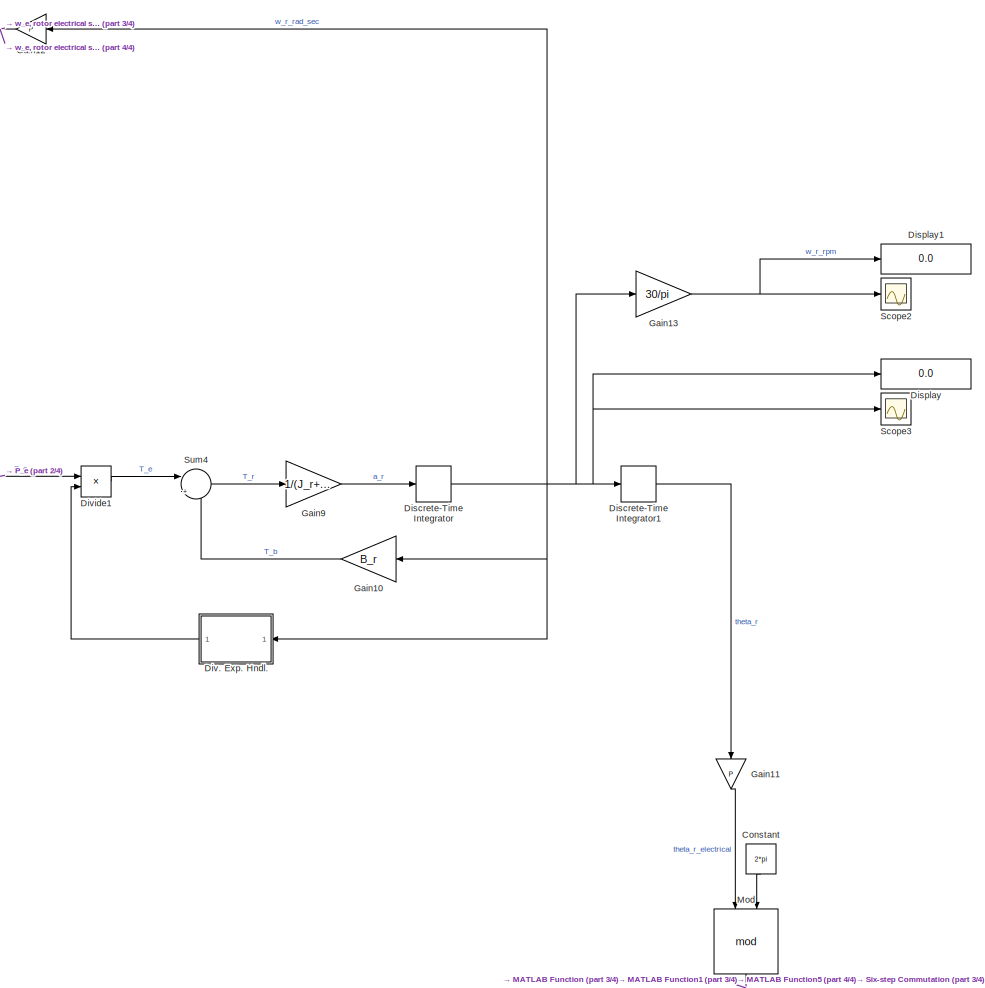
[diagram: root canvas - part 1/4, right side, full height]
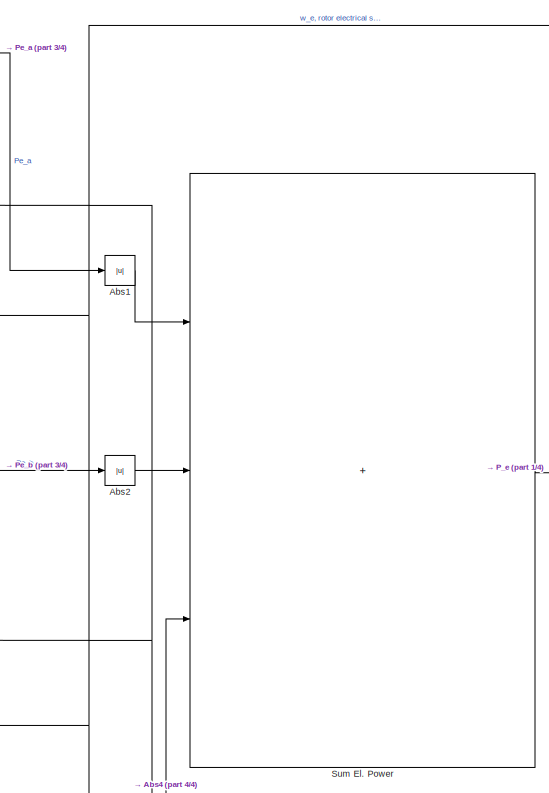
[diagram: root canvas - part 2/4, top center region]
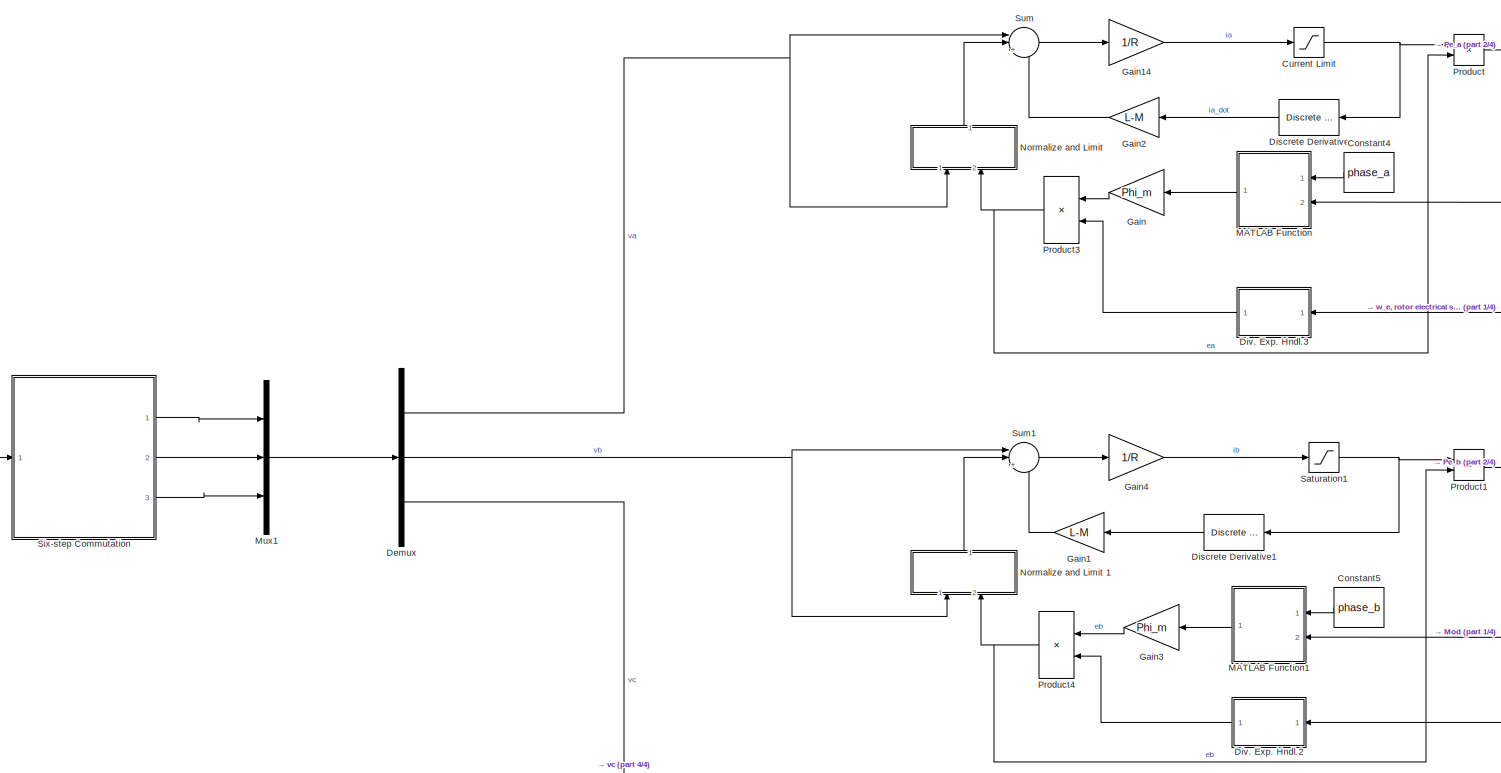
[diagram: root canvas - part 3/4, top left region]
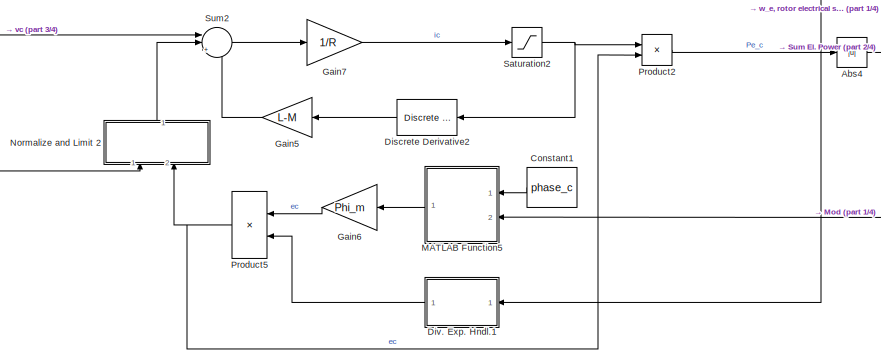
[diagram: root canvas - part 4/4, bottom center region]
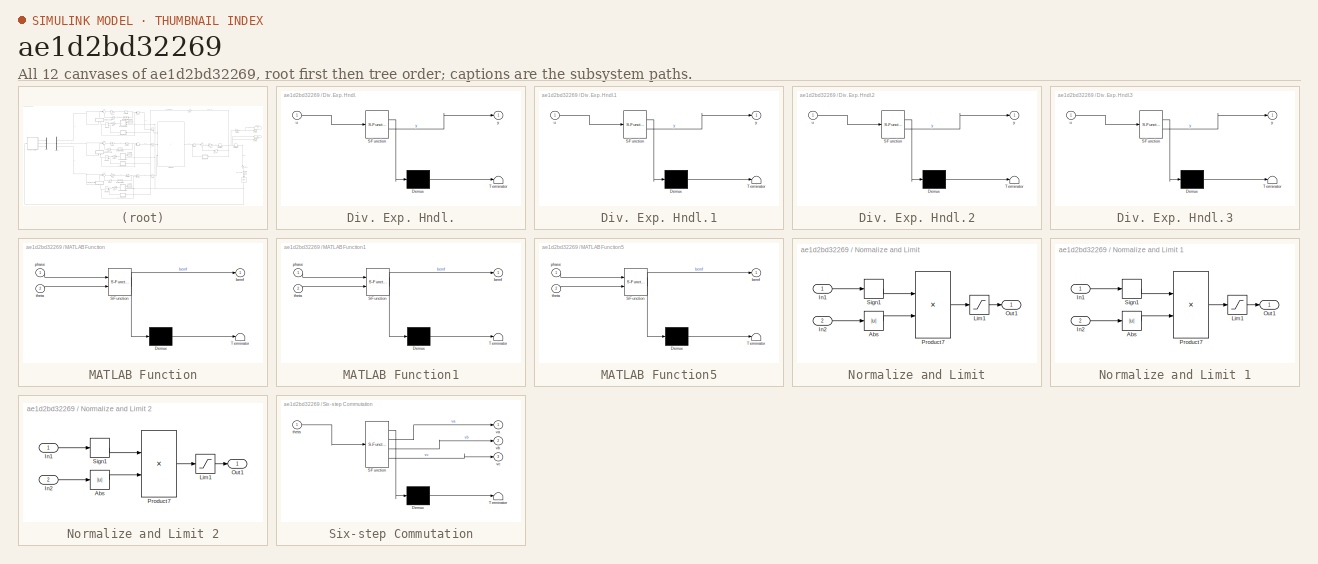
[diagram: thumbnail index - all 12 canvases of the model, root first then tree order]
MODEL slx_ae1d2bd32269
KIND model
CONFIG AbsTol = auto
CONFIG EnableMultiTasking = off
CONFIG FixedStep = 1e-05
CONFIG MaxStep = auto
CONFIG MinStep = auto
CONFIG RelTol = 1e-3
CONFIG SampleTimeConstraint = Unconstrained
CONFIG SolverName = FixedStepDiscrete
CONFIG StartTime = 0.0
CONFIG StopTime = 10
BLOCK [Abs] Abs1
  SaturateOnIntegerOverflow = off
BLOCK [Abs] Abs2
  SaturateOnIntegerOverflow = off
BLOCK [Abs] Abs4
  NameLocation = top
  SaturateOnIntegerOverflow = off
BLOCK [Constant] Constant
  NameLocation = left
  Value = 2*pi
BLOCK [Constant] Constant1
  NameLocation = top
  Value = phase_c
BLOCK [Constant] Constant4
  NameLocation = top
  Value = phase_a
BLOCK [Constant] Constant5
  NameLocation = top
  Value = phase_b
BLOCK [Saturate] Current Limit
  LowerLimit = -current_lim
  UpperLimit = current_lim
BLOCK [Demux] Demux
  Outputs = 3
  Ports = [1, 3]
BLOCK [Reference] Discrete Derivative  REF=simulink/Discrete/Discrete Derivative
  NameLocation = top
  Ports = [1, 1]
  SourceBlock = simulink/Discrete/Discrete Derivative
  SourceProductBaseCode = SL
  SourceType = Discrete Derivative
BLOCK [Reference] Discrete Derivative1  REF=simulink/Discrete/Discrete Derivative
  NameLocation = top
  Ports = [1, 1]
  SourceBlock = simulink/Discrete/Discrete Derivative
  SourceProductBaseCode = SL
  SourceType = Discrete Derivative
BLOCK [Reference] Discrete Derivative2  REF=simulink/Discrete/Discrete Derivative
  NameLocation = top
  Ports = [1, 1]
  SourceBlock = simulink/Discrete/Discrete Derivative
  SourceProductBaseCode = SL
  SourceType = Discrete Derivative
BLOCK [DiscreteIntegrator] Discrete-Time Integrator
  ICPrevOutput = DiscIntNeverNeededParam
  ICPrevScaledInput = DiscIntNeverNeededParam
  InitialConditionSetting = Auto
  Ports = [1, 1]
  SampleTime = -1
BLOCK [DiscreteIntegrator] Discrete-Time Integrator1
  ICPrevOutput = DiscIntNeverNeededParam
  ICPrevScaledInput = DiscIntNeverNeededParam
  InitialConditionSetting = Auto
  Ports = [1, 1]
  SampleTime = -1
BLOCK [Display] Display
  Decimation = 1
  Ports = [1]
BLOCK [Display] Display1
  Decimation = 1
  Ports = [1]
BLOCK [SubSystem] Div. Exp. Hndl.
  ErrorFcn = Stateflow.Translate.translate
  PermitHierarchicalResolution = ExplicitOnly
  Ports = [1, 1]
  RequestExecContextInheritance = off
  SFBlockType = MATLAB Function
  TreatAsAtomicUnit = on
BLOCK [Demux] Div. Exp. Hndl./ Demux 
  Outputs = 1
  Ports = [1, 1]
BLOCK [S-Function] Div. Exp. Hndl./ SFunction 
  EnableBusSupport = on
  FunctionName = sf_sfun
  PortCounts = [1 2]
  Ports = [1, 2]
  SFcnIsStateOwnerBlock = off
  SFunctionDeploymentMode = off
  Tag = Stateflow S-Function 4
BLOCK [Terminator] Div. Exp. Hndl./ Terminator 
BLOCK [Inport] Div. Exp. Hndl./u
BLOCK [Outport] Div. Exp. Hndl./y
BLOCK [SubSystem] Div. Exp. Hndl.1
  ErrorFcn = Stateflow.Translate.translate
  PermitHierarchicalResolution = ExplicitOnly
  Ports = [1, 1]
  RequestExecContextInheritance = off
  SFBlockType = MATLAB Function
  TreatAsAtomicUnit = on
BLOCK [Demux] Div. Exp. Hndl.1/ Demux 
  Outputs = 1
  Ports = [1, 1]
BLOCK [S-Function] Div. Exp. Hndl.1/ SFunction 
  EnableBusSupport = on
  FunctionName = sf_sfun
  PortCounts = [1 2]
  Ports = [1, 2]
  SFcnIsStateOwnerBlock = off
  SFunctionDeploymentMode = off
  Tag = Stateflow S-Function 8
BLOCK [Terminator] Div. Exp. Hndl.1/ Terminator 
BLOCK [Inport] Div. Exp. Hndl.1/u
BLOCK [Outport] Div. Exp. Hndl.1/y
BLOCK [SubSystem] Div. Exp. Hndl.2
  ErrorFcn = Stateflow.Translate.translate
  PermitHierarchicalResolution = ExplicitOnly
  Ports = [1, 1]
  RequestExecContextInheritance = off
  SFBlockType = MATLAB Function
  TreatAsAtomicUnit = on
BLOCK [Demux] Div. Exp. Hndl.2/ Demux 
  Outputs = 1
  Ports = [1, 1]
BLOCK [S-Function] Div. Exp. Hndl.2/ SFunction 
  EnableBusSupport = on
  FunctionName = sf_sfun
  PortCounts = [1 2]
  Ports = [1, 2]
  SFcnIsStateOwnerBlock = off
  SFunctionDeploymentMode = off
  Tag = Stateflow S-Function 7
BLOCK [Terminator] Div. Exp. Hndl.2/ Terminator 
BLOCK [Inport] Div. Exp. Hndl.2/u
BLOCK [Outport] Div. Exp. Hndl.2/y
BLOCK [SubSystem] Div. Exp. Hndl.3
  ErrorFcn = Stateflow.Translate.translate
  PermitHierarchicalResolution = ExplicitOnly
  Ports = [1, 1]
  RequestExecContextInheritance = off
  SFBlockType = MATLAB Function
  TreatAsAtomicUnit = on
BLOCK [Demux] Div. Exp. Hndl.3/ Demux 
  Outputs = 1
  Ports = [1, 1]
BLOCK [S-Function] Div. Exp. Hndl.3/ SFunction 
  EnableBusSupport = on
  FunctionName = sf_sfun
  PortCounts = [1 2]
  Ports = [1, 2]
  SFcnIsStateOwnerBlock = off
  SFunctionDeploymentMode = off
  Tag = Stateflow S-Function 6
BLOCK [Terminator] Div. Exp. Hndl.3/ Terminator 
BLOCK [Inport] Div. Exp. Hndl.3/u
BLOCK [Outport] Div. Exp. Hndl.3/y
BLOCK [Product] Divide1
  Inputs = */
  Ports = [2, 1]
BLOCK [Gain] Gain
  Gain = Phi_m
  NameLocation = top
BLOCK [Gain] Gain1
  Gain = L-M
  NameLocation = top
BLOCK [Gain] Gain10
  Gain = B_r
  NameLocation = top
BLOCK [Gain] Gain11
  Gain = P
  NameLocation = left
BLOCK [Gain] Gain12
  Gain = P
  NameLocation = top
BLOCK [Gain] Gain13
  Gain = 30/pi
BLOCK [Gain] Gain14
  Gain = 1/R
BLOCK [Gain] Gain2
  Gain = L-M
  NameLocation = top
BLOCK [Gain] Gain3
  Gain = Phi_m
  NameLocation = top
BLOCK [Gain] Gain4
  Gain = 1/R
BLOCK [Gain] Gain5
  Gain = L-M
  NameLocation = top
BLOCK [Gain] Gain6
  Gain = Phi_m
  NameLocation = top
BLOCK [Gain] Gain7
  Gain = 1/R
BLOCK [Gain] Gain9
  Gain = 1/(J_r+1.611e-03)
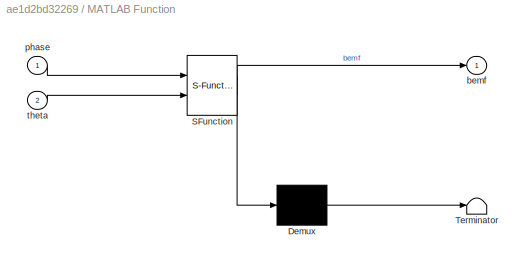
BLOCK [SubSystem] MATLAB Function
  ErrorFcn = Stateflow.Translate.translate
  NameLocation = top
  PermitHierarchicalResolution = ExplicitOnly
  Ports = [2, 1]
  RequestExecContextInheritance = off
  SFBlockType = MATLAB Function
  TreatAsAtomicUnit = on
BLOCK [Demux] MATLAB Function/ Demux 
  Outputs = 1
  Ports = [1, 1]
BLOCK [S-Function] MATLAB Function/ SFunction 
  EnableBusSupport = on
  FunctionName = sf_sfun
  PortCounts = [2 2]
  Ports = [2, 2]
  SFcnIsStateOwnerBlock = off
  SFunctionDeploymentMode = off
  Tag = Stateflow S-Function 2
BLOCK [Terminator] MATLAB Function/ Terminator 
BLOCK [Outport] MATLAB Function/bemf
BLOCK [Inport] MATLAB Function/phase
BLOCK [Inport] MATLAB Function/theta
  Port = 2
BLOCK [SubSystem] MATLAB Function1
  ErrorFcn = Stateflow.Translate.translate
  NameLocation = top
  PermitHierarchicalResolution = ExplicitOnly
  Ports = [2, 1]
  RequestExecContextInheritance = off
  SFBlockType = MATLAB Function
  TreatAsAtomicUnit = on
BLOCK [Demux] MATLAB Function1/ Demux 
  Outputs = 1
  Ports = [1, 1]
BLOCK [S-Function] MATLAB Function1/ SFunction 
  EnableBusSupport = on
  FunctionName = sf_sfun
  PortCounts = [2 2]
  Ports = [2, 2]
  SFcnIsStateOwnerBlock = off
  SFunctionDeploymentMode = off
  Tag = Stateflow S-Function 1
BLOCK [Terminator] MATLAB Function1/ Terminator 
BLOCK [Outport] MATLAB Function1/bemf
BLOCK [Inport] MATLAB Function1/phase
BLOCK [Inport] MATLAB Function1/theta
  Port = 2
BLOCK [SubSystem] MATLAB Function5
  ErrorFcn = Stateflow.Translate.translate
  NameLocation = top
  PermitHierarchicalResolution = ExplicitOnly
  Ports = [2, 1]
  RequestExecContextInheritance = off
  SFBlockType = MATLAB Function
  TreatAsAtomicUnit = on
BLOCK [Demux] MATLAB Function5/ Demux 
  Outputs = 1
  Ports = [1, 1]
BLOCK [S-Function] MATLAB Function5/ SFunction 
  EnableBusSupport = on
  FunctionName = sf_sfun
  PortCounts = [2 2]
  Ports = [2, 2]
  SFcnIsStateOwnerBlock = off
  SFunctionDeploymentMode = off
  Tag = Stateflow S-Function 9
BLOCK [Terminator] MATLAB Function5/ Terminator 
BLOCK [Outport] MATLAB Function5/bemf
BLOCK [Inport] MATLAB Function5/phase
BLOCK [Inport] MATLAB Function5/theta
  Port = 2
BLOCK [Math] Mod
  NameLocation = left
  Operator = mod
  Ports = [2, 1]
BLOCK [Mux] Mux1
  DisplayOption = bar
  Inputs = 3
  Ports = [3, 1]
BLOCK [SubSystem] Normalize and Limit
  Ports = [2, 1]
  RequestExecContextInheritance = off
BLOCK [SubSystem] Normalize and Limit 1
  Ports = [2, 1]
  RequestExecContextInheritance = off
BLOCK [Abs] Normalize and Limit 1/Abs
  SaturateOnIntegerOverflow = off
BLOCK [Inport] Normalize and Limit 1/In1
BLOCK [Inport] Normalize and Limit 1/In2
  Port = 2
BLOCK [Saturate] Normalize and Limit 1/Lim1
  LowerLimit = -28
  UpperLimit = 28
BLOCK [Outport] Normalize and Limit 1/Out1
BLOCK [Product] Normalize and Limit 1/Product7
  Ports = [2, 1]
BLOCK [Signum] Normalize and Limit 1/Sign1
BLOCK [SubSystem] Normalize and Limit 2
  Ports = [2, 1]
  RequestExecContextInheritance = off
BLOCK [Abs] Normalize and Limit 2/Abs
  SaturateOnIntegerOverflow = off
BLOCK [Inport] Normalize and Limit 2/In1
BLOCK [Inport] Normalize and Limit 2/In2
  Port = 2
BLOCK [Saturate] Normalize and Limit 2/Lim1
  LowerLimit = -28
  UpperLimit = 28
BLOCK [Outport] Normalize and Limit 2/Out1
BLOCK [Product] Normalize and Limit 2/Product7
  Ports = [2, 1]
BLOCK [Signum] Normalize and Limit 2/Sign1
BLOCK [Abs] Normalize and Limit/Abs
  SaturateOnIntegerOverflow = off
BLOCK [Inport] Normalize and Limit/In1
BLOCK [Inport] Normalize and Limit/In2
  Port = 2
BLOCK [Saturate] Normalize and Limit/Lim1
  LowerLimit = -28
  UpperLimit = 28
BLOCK [Outport] Normalize and Limit/Out1
BLOCK [Product] Normalize and Limit/Product7
  Ports = [2, 1]
BLOCK [Signum] Normalize and Limit/Sign1
BLOCK [Product] Product
  Ports = [2, 1]
BLOCK [Product] Product1
  Ports = [2, 1]
BLOCK [Product] Product2
  Ports = [2, 1]
BLOCK [Product] Product3
  NameLocation = top
  Ports = [2, 1]
BLOCK [Product] Product4
  NameLocation = top
  Ports = [2, 1]
BLOCK [Product] Product5
  NameLocation = top
  Ports = [2, 1]
BLOCK [Saturate] Saturation1
  LowerLimit = -current_lim
  UpperLimit = current_lim
BLOCK [Saturate] Saturation2
  LowerLimit = -current_lim
  UpperLimit = current_lim
BLOCK [Scope] Scope2
  Floating = off
  NumInputPorts = 1
  Ports = [1]
  ScopeSpecificationString = Simulink.scopes.TimeScopeBlockCfg('CurrentConfiguration', extmgr.ConfigurationSet(extmgr.Configuration('Core','General UI',true),extmgr.Configuration('Core','Source UI',true),extmgr.Configuration('Sources','WiredSimulink',true,'DataLoggingVariableName','ScopeData2'),extmgr.Configuration('Visuals','Time Domain',true,'SerializedDisplays',{struct('MinYLimReal','6680.44662','MaxYLimReal','6682.27023',...<+1461ch>
BLOCK [Scope] Scope3
  Floating = off
  NumInputPorts = 1
  Ports = [1]
  ScopeSpecificationString = Simulink.scopes.TimeScopeBlockCfg('CurrentConfiguration', extmgr.ConfigurationSet(extmgr.Configuration('Core','General UI',true),extmgr.Configuration('Core','Source UI',true),extmgr.Configuration('Sources','WiredSimulink',true,'DataLoggingVariableName','ScopeData2'),extmgr.Configuration('Visuals','Time Domain',true,'SerializedDisplays',{struct('MinYLimReal','-2209.70681','MaxYLimReal','245.52298',...<+1478ch>
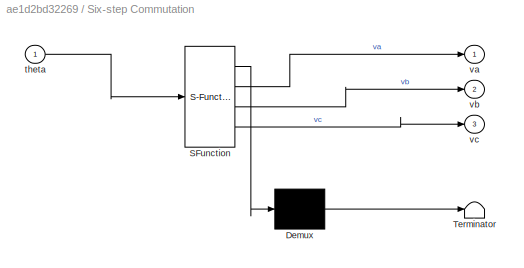
BLOCK [SubSystem] Six-step Commutation
  ErrorFcn = Stateflow.Translate.translate
  PermitHierarchicalResolution = ExplicitOnly
  Ports = [1, 3]
  RequestExecContextInheritance = off
  SFBlockType = MATLAB Function
  TreatAsAtomicUnit = on
BLOCK [Demux] Six-step Commutation/ Demux 
  Outputs = 1
  Ports = [1, 1]
BLOCK [S-Function] Six-step Commutation/ SFunction 
  EnableBusSupport = on
  FunctionName = sf_sfun
  PortCounts = [1 4]
  Ports = [1, 4]
  SFcnIsStateOwnerBlock = off
  SFunctionDeploymentMode = off
  Tag = Stateflow S-Function 5
BLOCK [Terminator] Six-step Commutation/ Terminator 
BLOCK [Inport] Six-step Commutation/theta
BLOCK [Outport] Six-step Commutation/va
BLOCK [Outport] Six-step Commutation/vb
  Port = 2
BLOCK [Outport] Six-step Commutation/vc
  Port = 3
BLOCK [Sum] Sum
  Inputs = ||+--
  Ports = [3, 1]
BLOCK [Sum] Sum El. Power
  IconShape = rectangular
  Inputs = +++
  Ports = [3, 1]
BLOCK [Sum] Sum1
  Inputs = ||+--
  Ports = [3, 1]
BLOCK [Sum] Sum2
  Inputs = ||+--
  Ports = [3, 1]
BLOCK [Sum] Sum4
  Inputs = ||+--
  Ports = [3, 1]
LINE Abs1:1 -> Sum El. Power:1
LINE Abs2:1 -> Sum El. Power:2
LINE Abs4:1 -> Sum El. Power:3
LINE Constant1:1 -> MATLAB Function5:1
LINE Constant4:1 -> MATLAB Function:1
LINE Constant5:1 -> MATLAB Function1:1
LINE Constant:1 -> Mod:2
NET Current Limit:1 -> Discrete Derivative:1, Product:1
NET Demux:1 -> Normalize and Limit:1, Sum:1
NET Demux:2 -> Normalize and Limit 1:1, Sum1:1
NET Demux:3 -> Normalize and Limit 2:1, Sum2:1
LINE Discrete Derivative1:1 -> Gain1:1
LINE Discrete Derivative2:1 -> Gain5:1
LINE Discrete Derivative:1 -> Gain2:1
LINE Discrete-Time Integrator1:1 -> Gain11:1
NET Discrete-Time Integrator:1 -> Discrete-Time Integrator1:1, Display:1, Div. Exp. Hndl.:1, Gain10:1, Gain12:1, Gain13:1, Scope3:1
LINE Div. Exp. Hndl.1:1 -> Product5:2
LINE Div. Exp. Hndl.2:1 -> Product4:2
LINE Div. Exp. Hndl.3:1 -> Product3:2
LINE Div. Exp. Hndl.:1 -> Divide1:2
LINE Divide1:1 -> Sum4:1
LINE Gain10:1 -> Sum4:3
LINE Gain11:1 -> Mod:1
NET Gain12:1 -> Div. Exp. Hndl.1:1, Div. Exp. Hndl.2:1, Div. Exp. Hndl.3:1
NET Gain13:1 -> Display1:1, Scope2:1
LINE Gain14:1 -> Current Limit:1
LINE Gain1:1 -> Sum1:3
LINE Gain2:1 -> Sum:3
LINE Gain3:1 -> Product4:1
LINE Gain4:1 -> Saturation1:1
LINE Gain5:1 -> Sum2:3
LINE Gain6:1 -> Product5:1
LINE Gain7:1 -> Saturation2:1
LINE Gain9:1 -> Discrete-Time Integrator:1
LINE Gain:1 -> Product3:1
LINE MATLAB Function1:1 -> Gain3:1
LINE MATLAB Function5:1 -> Gain6:1
LINE MATLAB Function:1 -> Gain:1
NET Mod:1 -> MATLAB Function1:2, MATLAB Function5:2, MATLAB Function:2, Six-step Commutation:1
LINE Mux1:1 -> Demux:1
LINE Normalize and Limit 1/Abs:1 -> Normalize and Limit 1/Product7:2
LINE Normalize and Limit 1/In1:1 -> Normalize and Limit 1/Sign1:1
LINE Normalize and Limit 1/In2:1 -> Normalize and Limit 1/Abs:1
LINE Normalize and Limit 1/Lim1:1 -> Normalize and Limit 1/Out1:1
LINE Normalize and Limit 1/Product7:1 -> Normalize and Limit 1/Lim1:1
LINE Normalize and Limit 1/Sign1:1 -> Normalize and Limit 1/Product7:1
LINE Normalize and Limit 1:1 -> Sum1:2
LINE Normalize and Limit 2/Abs:1 -> Normalize and Limit 2/Product7:2
LINE Normalize and Limit 2/In1:1 -> Normalize and Limit 2/Sign1:1
LINE Normalize and Limit 2/In2:1 -> Normalize and Limit 2/Abs:1
LINE Normalize and Limit 2/Lim1:1 -> Normalize and Limit 2/Out1:1
LINE Normalize and Limit 2/Product7:1 -> Normalize and Limit 2/Lim1:1
LINE Normalize and Limit 2/Sign1:1 -> Normalize and Limit 2/Product7:1
LINE Normalize and Limit 2:1 -> Sum2:2
LINE Normalize and Limit/Abs:1 -> Normalize and Limit/Product7:2
LINE Normalize and Limit/In1:1 -> Normalize and Limit/Sign1:1
LINE Normalize and Limit/In2:1 -> Normalize and Limit/Abs:1
LINE Normalize and Limit/Lim1:1 -> Normalize and Limit/Out1:1
LINE Normalize and Limit/Product7:1 -> Normalize and Limit/Lim1:1
LINE Normalize and Limit/Sign1:1 -> Normalize and Limit/Product7:1
LINE Normalize and Limit:1 -> Sum:2
LINE Product1:1 -> Abs2:1
LINE Product2:1 -> Abs4:1
NET Product3:1 -> Normalize and Limit:2, Product:2
NET Product4:1 -> Normalize and Limit 1:2, Product1:2
NET Product5:1 -> Normalize and Limit 2:2, Product2:2
LINE Product:1 -> Abs1:1
NET Saturation1:1 -> Discrete Derivative1:1, Product1:1
NET Saturation2:1 -> Discrete Derivative2:1, Product2:1
LINE Six-step Commutation:1 -> Mux1:1
LINE Six-step Commutation:2 -> Mux1:2
LINE Six-step Commutation:3 -> Mux1:3
LINE Sum El. Power:1 -> Divide1:1
LINE Sum1:1 -> Gain4:1
LINE Sum2:1 -> Gain7:1
LINE Sum4:1 -> Gain9:1
LINE Sum:1 -> Gain14:1
note: NET lines group one-source signal fan-out (src -> all destinations, sorted); 1:1 wires keep LINE
CHART MATLAB Function states=1 transitions=1
  STATE_LABEL 'eML_blk_kernel()'
  STATE_LABEL 'SCRIPT:\nfunction bemf = fcn(phase, theta)\n    theta_temp = mod(theta - phase,2*pi); % minus??\n    bemf = 0;\n    if theta_temp>=0 && theta_temp<(pi/6)\n        %bemf = -theta_temp/(pi/6);\n        bemf = -1;\n    elseif theta_temp>=(pi/6) && theta_temp<(5*pi/6)\n        bemf = -1;\n    elseif theta_temp>=(5*pi/6) && theta_temp<(pi)\n        %bemf = -1 + (theta_temp-5*pi/6)/(pi-5*pi/6);\n        bemf = -1;...<+331ch>'  <repeated x3 — deduplicated; at blocks: MATLAB Function, MATLAB Function5, MATLAB Function1>
CHART Div. Exp. Hndl. states=1 transitions=1
  STATE_LABEL 'eML_blk_kernel()'
  STATE_LABEL 'SCRIPT:\nfunction y = fcn(u)\n    y = u;\n    if u==0\n        y = 999999999;\n    end'
CHART Six-step Commutation states=1 transitions=1
  STATE_LABEL 'eML_blk_kernel()'
  STATE_LABEL 'SCRIPT:\nfunction [va, vb, vc] = fun_SixStepCommutation(theta)\n    va = 0; vb = 0; vc = 0;\n    theta = theta * 360 / 2 / pi;\n    v_dclink = 28;\n    if theta>=0 && theta<60\n        va = 0; vb = v_dclink; vc = -v_dclink;\n    elseif theta>=60 && theta<120\n        va = v_dclink; vb = v_dclink; vc = 0;\n    elseif theta>=120 && theta<180\n        va = v_dclink; vb = 0; vc = v_dclink;\n    elseif theta>=180...<+260ch>'
CHART Div. Exp. Hndl.3 states=1 transitions=1
  STATE_LABEL 'eML_blk_kernel()'
  STATE_LABEL 'SCRIPT:\nfunction y = fcn(u)\n    y = u;\n    if u==0\n        y = 0.1;\n    end\n\nend\n'
CHART Div. Exp. Hndl.2 states=1 transitions=1
  STATE_LABEL 'eML_blk_kernel()'
  STATE_LABEL 'SCRIPT:\nfunction y = fcn(u)\n    y = u;\n    if u==0\n        y = 0.1;\n    end\n\nend\n'
CHART Div. Exp. Hndl.1 states=1 transitions=1
  STATE_LABEL 'eML_blk_kernel()'
  STATE_LABEL 'SCRIPT:\nfunction y = fcn(u)\n    y = u;\n    if u==0\n        y = 0.1;\n    end\n\nend\n'
CHART MATLAB Function5 states=1 transitions=1
  STATE_LABEL 'eML_blk_kernel()'
CHART MATLAB Function1 states=1 transitions=1
  STATE_LABEL 'eML_blk_kernel()'
CHART  states=0 transitions=0
CHART  states=0 transitions=0
CHART  states=0 transitions=0
CHART  states=0 transitions=0
CHART  states=0 transitions=0
CHART  states=0 transitions=0
CHART  states=0 transitions=0
CHART  states=0 transitions=0
